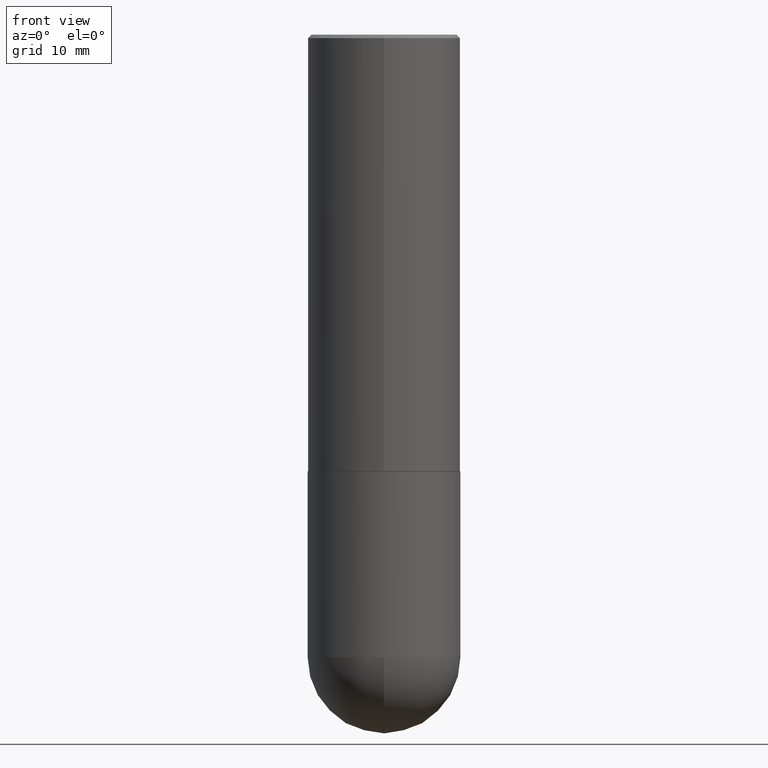
[diagram: clean part render]
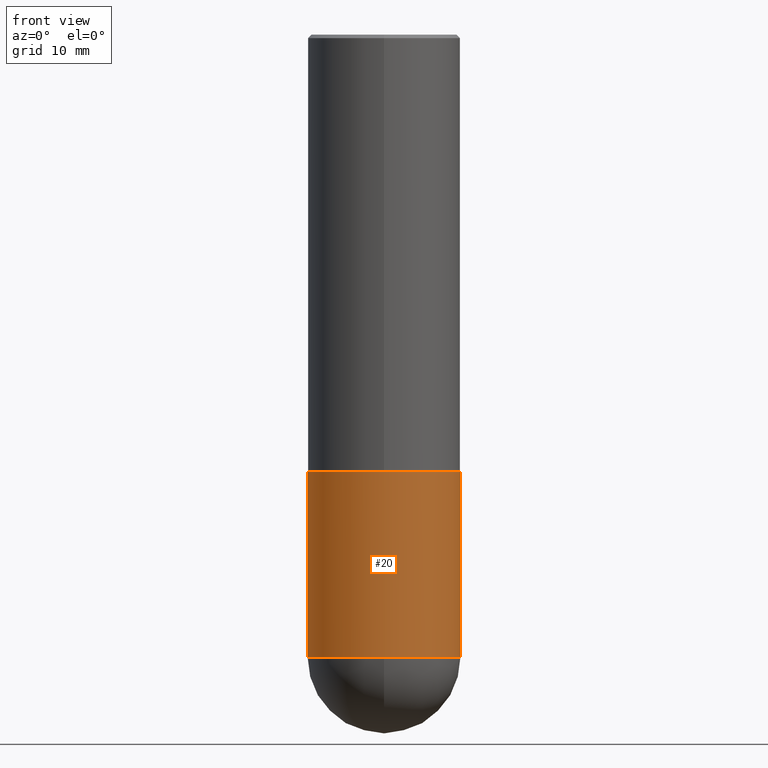
[diagram: same view with one face highlighted and labeled with its STEP entity id]
A machine part, front view. The second image highlights one B-rep face of the part: STEP entity #20.
In plain terms, the highlighted cylindrical surface (partial cylindrical patch) has radius 11.1125 mm, axis along (-0, 0, 1).
Its self-contained STEP definition (entity closure, byte-faithful):
#8 = DIRECTION ( 'NONE',  ( 1.000000000000000000, -6.982962677686266711E-15, 4.876176775795935232E-29 ) ) ;
#16 = EDGE_CURVE ( 'NONE', #228, #249, #276, .T. ) ;
#20 = ADVANCED_FACE ( 'NONE', ( #356 ), #386, .T. ) ;
#31 = EDGE_LOOP ( 'NONE', ( #165, #135, #162, #182, #218 ) ) ;
#33 = DIRECTION ( 'NONE',  ( 1.000000000000000000, -6.982962677686265133E-15, 0.000000000000000000 ) ) ;
#43 = AXIS2_PLACEMENT_3D ( 'NONE', #110, #231, #355 ) ;
#45 = DIRECTION ( 'NONE',  ( -2.445468806185136877E-29, 3.491481338843145188E-15, 1.000000000000000000 ) ) ;
#57 = EDGE_CURVE ( 'NONE', #66, #230, #174, .T. ) ;
#62 = CARTESIAN_POINT ( 'NONE',  ( 0.000000000000000000, 0.000000000000000000, 0.000000000000000000 ) ) ;
#66 = VERTEX_POINT ( 'NONE', #168 ) ;
#83 = VECTOR ( 'NONE', #45, 39.37007874015748143 ) ;
#92 = CARTESIAN_POINT ( 'NONE',  ( 8.711982622034549126E-29, -1.243840226962870597E-14, -3.562500000000000000 ) ) ;
#110 = CARTESIAN_POINT ( 'NONE',  ( 8.711982622034549126E-29, -1.243840226962870597E-14, -3.562500000000000000 ) ) ;
#111 = DIRECTION ( 'NONE',  ( -2.445468806185136597E-29, 3.491481338843145583E-15, 1.000000000000000000 ) ) ;
#115 = VECTOR ( 'NONE', #389, 39.37007874015748143 ) ;
#119 = DIRECTION ( 'NONE',  ( -2.445468806185136597E-29, 3.491481338843145583E-15, 1.000000000000000000 ) ) ;
#130 = AXIS2_PLACEMENT_3D ( 'NONE', #92, #119, #33 ) ;
#135 = ORIENTED_EDGE ( 'NONE', *, *, #57, .T. ) ;
#139 = EDGE_CURVE ( 'NONE', #230, #405, #229, .T. ) ;
#150 = EDGE_CURVE ( 'NONE', #66, #228, #361, .T. ) ;
#162 = ORIENTED_EDGE ( 'NONE', *, *, #139, .T. ) ;
#163 = CARTESIAN_POINT ( 'NONE',  ( 0.4374999999999998890, -3.055046171487740897E-15, 2.133327339410721209E-29 ) ) ;
#165 = ORIENTED_EDGE ( 'NONE', *, *, #150, .F. ) ;
#168 = CARTESIAN_POINT ( 'NONE',  ( -0.4374999999999998890, -7.474928339417851874E-15, -3.562500000000000000 ) ) ;
#174 = CIRCLE ( 'NONE', #43, 0.4374999999999998890 ) ;
#182 = ORIENTED_EDGE ( 'NONE', *, *, #325, .T. ) ;
#192 = DIRECTION ( 'NONE',  ( -2.445468806185136597E-29, 3.491481338843145583E-15, 1.000000000000000000 ) ) ;
#218 = ORIENTED_EDGE ( 'NONE', *, *, #16, .F. ) ;
#228 = VERTEX_POINT ( 'NONE', #329 ) ;
#229 = CIRCLE ( 'NONE', #130, 0.4374999999999998890 ) ;
#230 = VERTEX_POINT ( 'NONE', #314 ) ;
#231 = DIRECTION ( 'NONE',  ( -2.445468806185136597E-29, 3.491481338843145583E-15, 1.000000000000000000 ) ) ;
#232 = DIRECTION ( 'NONE',  ( 1.000000000000000000, -6.982962677686265133E-15, 0.000000000000000000 ) ) ;
#249 = VERTEX_POINT ( 'NONE', #288 ) ;
#252 = AXIS2_PLACEMENT_3D ( 'NONE', #391, #111, #232 ) ;
#267 = LINE ( 'NONE', #163, #115 ) ;
#276 = CIRCLE ( 'NONE', #252, 0.4375000000000000000 ) ;
#288 = CARTESIAN_POINT ( 'NONE',  ( 0.4375000000000000000, -1.178374951859560505E-14, -2.500000000000000000 ) ) ;
#314 = CARTESIAN_POINT ( 'NONE',  ( -3.108624468950352327E-15, -0.4375000000000127676, -3.562499999999998224 ) ) ;
#323 = CARTESIAN_POINT ( 'NONE',  ( 0.4374999999999998890, -1.363859897985603030E-14, -3.562500000000000000 ) ) ;
#325 = EDGE_CURVE ( 'NONE', #405, #249, #267, .T. ) ;
#329 = CARTESIAN_POINT ( 'NONE',  ( -0.4375000000000000000, -7.474928339417847141E-15, -2.500000000000000000 ) ) ;
#332 = CARTESIAN_POINT ( 'NONE',  ( -0.4374999999999998890, 3.108624468950437524E-15, -2.152034101986520964E-29 ) ) ;
#348 = AXIS2_PLACEMENT_3D ( 'NONE', #62, #192, #8 ) ;
#355 = DIRECTION ( 'NONE',  ( 1.000000000000000000, -6.982962677686265133E-15, 0.000000000000000000 ) ) ;
#356 = FACE_OUTER_BOUND ( 'NONE', #31, .T. ) ;
#361 = LINE ( 'NONE', #332, #83 ) ;
#386 = CYLINDRICAL_SURFACE ( 'NONE', #348, 0.4374999999999998890 ) ;
#389 = DIRECTION ( 'NONE',  ( -2.445468806185136877E-29, 3.491481338843145188E-15, 1.000000000000000000 ) ) ;
#391 = CARTESIAN_POINT ( 'NONE',  ( 6.113672015462842613E-29, -8.728703347107864943E-15, -2.500000000000000000 ) ) ;
#405 = VERTEX_POINT ( 'NONE', #323 ) ;